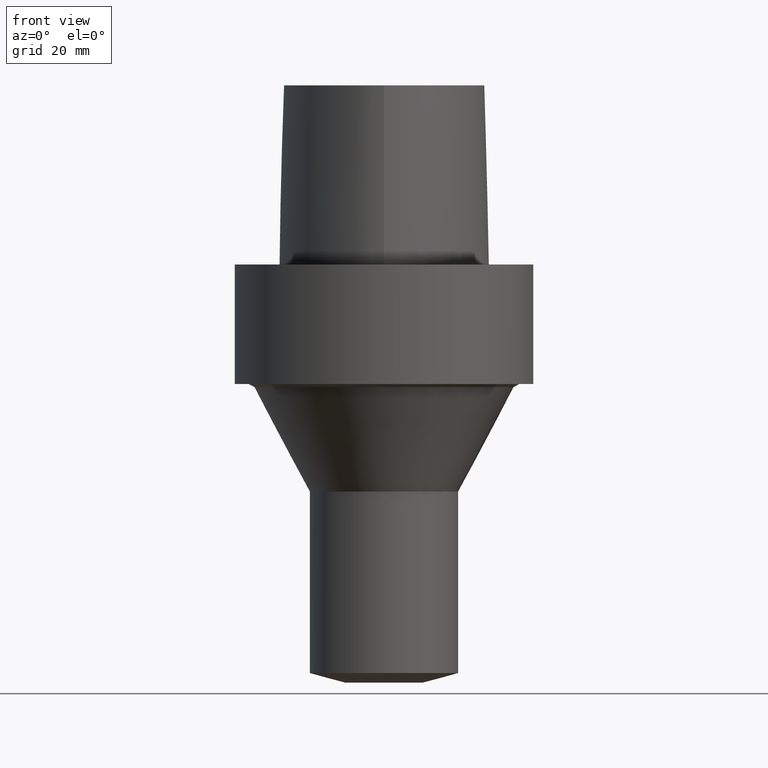
[diagram: clean part render]
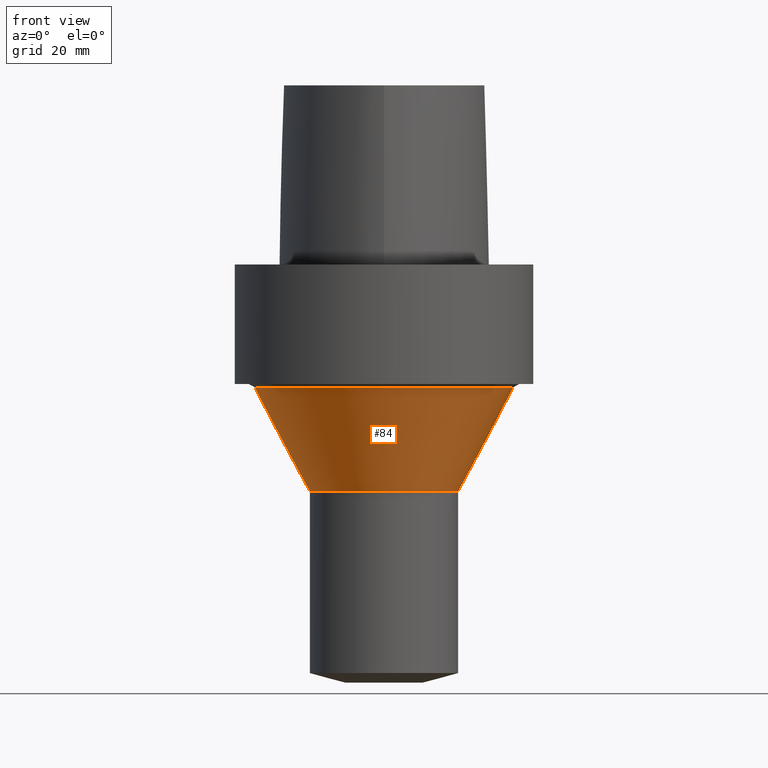
[diagram: same view with one face highlighted and labeled with its STEP entity id]
A machine part, front view. The second image highlights one B-rep face of the part: STEP entity #84.
In plain terms, the highlighted conical surface has half-angle 28 deg.
Its self-contained STEP definition (entity closure, byte-faithful):
#84=ADVANCED_FACE('',(#110,#111),#112,.T.);
#110=FACE_BOUND('',#520,.T.);
#111=FACE_BOUND('',#521,.T.);
#112=CONICAL_SURFACE('',#522,17.1443414,0.488692190674907);
#520=EDGE_LOOP('',(#565));
#521=EDGE_LOOP('',(#566));
#522=AXIS2_PLACEMENT_3D('',#567,#568,#569);
#565=ORIENTED_EDGE('',*,*,#575,.F.);
#566=ORIENTED_EDGE('',*,*,#579,.T.);
#567=CARTESIAN_POINT('',(1.7919806078222E-015,3.5839612156444E-015,-29.2652642226289));
#568=DIRECTION('',(-6.12323399573677E-017,-1.22464679914735E-016,1.0));
#569=DIRECTION('',(-1.23259516440783E-032,1.0,1.22464679914735E-016));
#575=EDGE_CURVE('',#589,#589,#590,.T.);
#579=EDGE_CURVE('',#597,#597,#598,.T.);
#589=VERTEX_POINT('',#754);
#590=CIRCLE('',#755,12.5);
#597=VERTEX_POINT('',#762);
#598=CIRCLE('',#763,21.7886828);
#754=CARTESIAN_POINT('',(2.32682891870191E-015,12.5,-38.0000000052577));
#755=AXIS2_PLACEMENT_3D('',#770,#771,#772);
#762=CARTESIAN_POINT('',(1.25713229694248E-015,21.7886828,-20.53052844));
#763=AXIS2_PLACEMENT_3D('',#782,#783,#784);
#770=CARTESIAN_POINT('',(2.32682891870191E-015,4.65365783740382E-015,-38.0000000052577));
#771=DIRECTION('',(6.12323399573677E-017,1.22464679914735E-016,-1.0));
#772=DIRECTION('',(-1.23259516440783E-032,1.0,1.22464679914735E-016));
#782=CARTESIAN_POINT('',(1.25713229694249E-015,2.51426459388497E-015,-20.53052844));
#783=DIRECTION('',(6.12323399573677E-017,1.22464679914735E-016,-1.0));
#784=DIRECTION('',(-1.23259516440783E-032,1.0,1.22464679914735E-016));